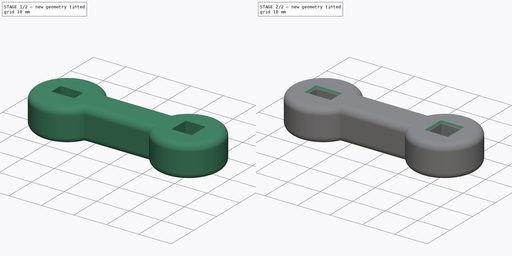
[diagram: build sequence overview — one tinted view per stage of 2, left to right]
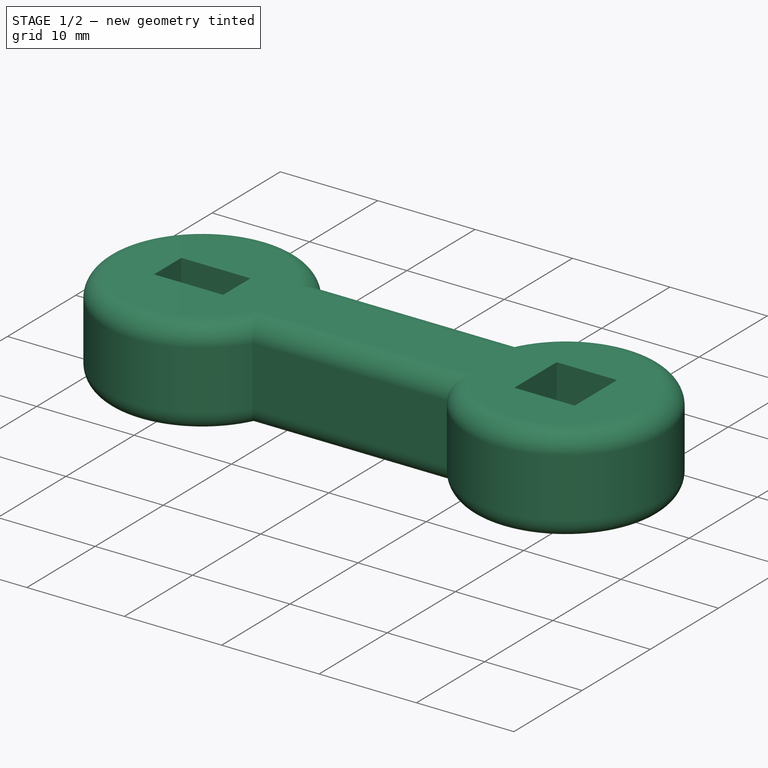
[diagram: stage 1 of 2 — iso view after this stage's code; geometry added in this stage tinted green]
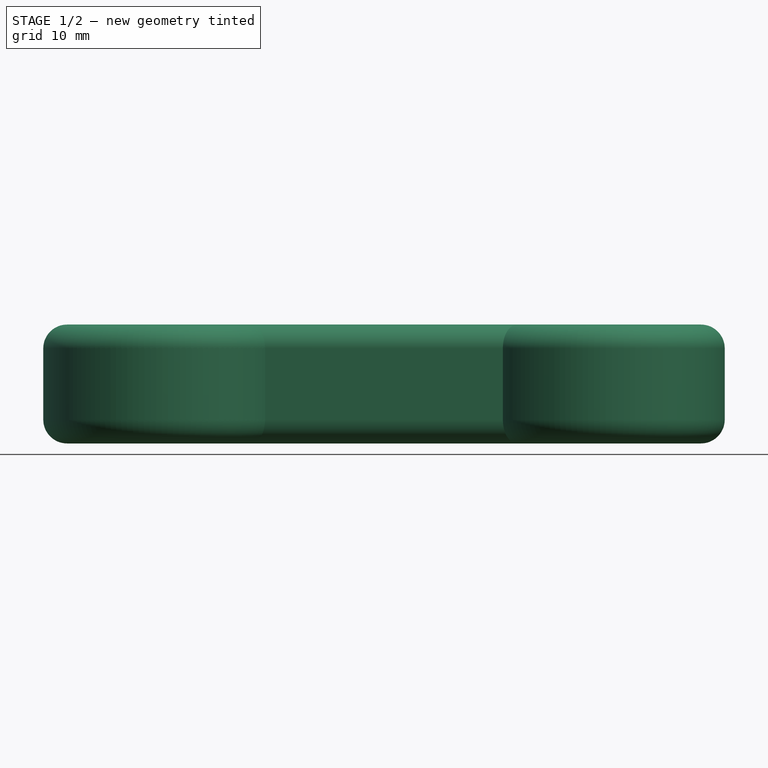
[diagram: stage 1 of 2 — front view after this stage's code; geometry added in this stage tinted green]
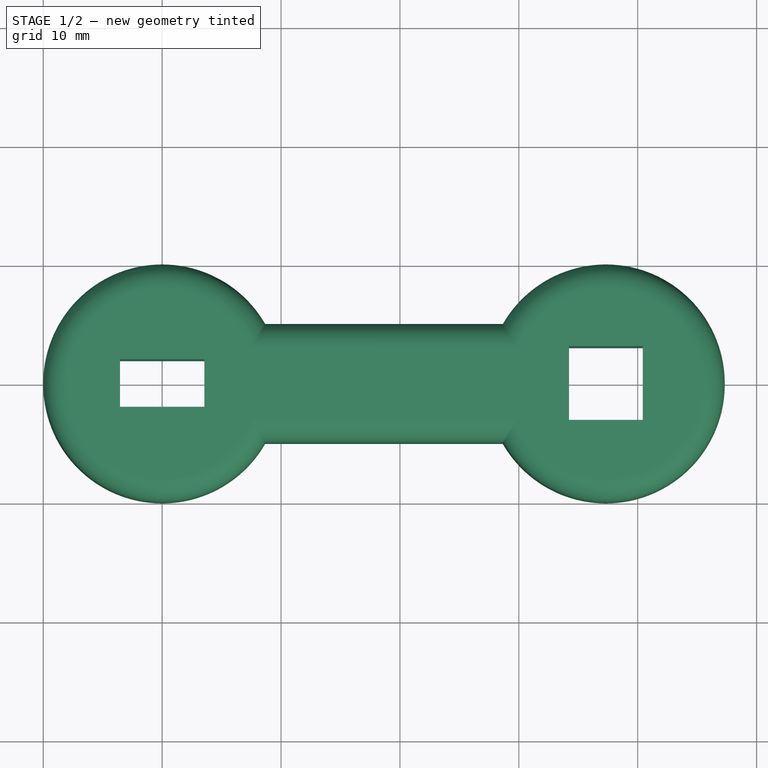
[diagram: stage 1 of 2 — top view after this stage's code; geometry added in this stage tinted green]
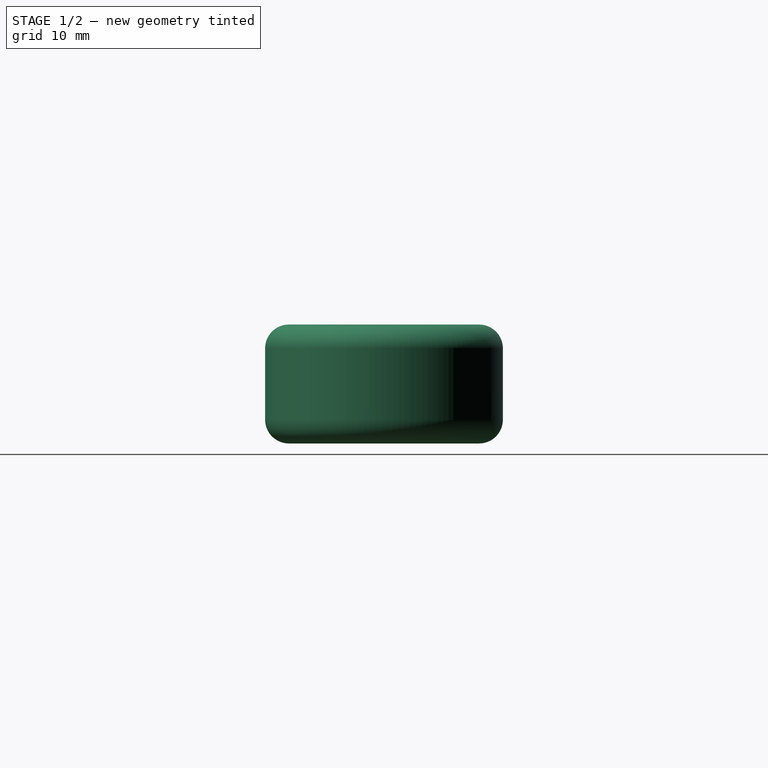
[diagram: stage 1 of 2 — right view after this stage's code; geometry added in this stage tinted green]
FCSTD DOCUMENT  (FreeCAD 1.0R39285 (Git))
Label: LockshieldKey
License: All rights reserved
LicenseURL: https://en.wikipedia.org/wiki/All_rights_reserved
objects: PartDesign::Fillet×2, Sketcher::SketchObject×1, PartDesign::Pad×1, PartDesign::Body×1
note: 12 computed .brp shape members not serialized (recipe doc carries the construction recipe); baked Part::Feature solids carry a one-line shape summary decoded from their .brp

FEATURE [Sketcher::SketchObject] Sketch
  ArcFitTolerance = 1e-06
  AttachmentSupport = -> [XY_Plane]
  FullyConstrained = true
  MakeInternals = false
  MapMode = 5
  sketch-geometry (16):
    g0: LineSegment StartX=-3.55 StartY=2 StartZ=0 EndX=-3.55 EndY=-2 EndZ=0
    g1: LineSegment StartX=-3.55 StartY=-2 StartZ=0 EndX=3.55 EndY=-2 EndZ=0
    g2: LineSegment StartX=3.55 StartY=-2 StartZ=0 EndX=3.55 EndY=2 EndZ=0
    g3: LineSegment StartX=3.55 StartY=2 StartZ=0 EndX=-3.55 EndY=2 EndZ=0
    g4: GeomPoint [constr] X=0 Y=0 Z=0
    g5: ArcOfCircle CenterX=0 CenterY=0 CenterZ=0 NormalX=0 NormalY=0 NormalZ=1 AngleXU=0 Radius=10 StartAngle=0.523599 EndAngle=5.75959
    g6: ArcOfCircle CenterX=37.3205 CenterY=0 CenterZ=0 NormalX=0 NormalY=0 NormalZ=1 AngleXU=0 Radius=10 StartAngle=3.66519 EndAngle=8.90118
    g7: LineSegment [constr] StartX=8.66025 StartY=5 StartZ=0 EndX=8.66025 EndY=-5 EndZ=0
    g8: LineSegment [constr] StartX=28.6603 StartY=5 StartZ=0 EndX=28.6603 EndY=-5 EndZ=0
    g9: LineSegment StartX=8.66025 StartY=5 StartZ=0 EndX=28.6603 EndY=5 EndZ=0
    g10: LineSegment StartX=8.66025 StartY=-5 StartZ=0 EndX=28.6603 EndY=-5 EndZ=0
    g11: LineSegment StartX=34.2205 StartY=3.1 StartZ=0 EndX=34.2205 EndY=-3.1 EndZ=0
    g12: LineSegment StartX=34.2205 StartY=-3.1 StartZ=0 EndX=40.4205 EndY=-3.1 EndZ=0
    g13: LineSegment StartX=40.4205 StartY=-3.1 StartZ=0 EndX=40.4205 EndY=3.1 EndZ=0
    g14: LineSegment StartX=40.4205 StartY=3.1 StartZ=0 EndX=34.2205 EndY=3.1 EndZ=0
    g15: GeomPoint [constr] X=37.3205 Y=0 Z=0
  constraints (41):
    c: Coincident(g0,g1)
    c: Coincident(g1,g2)
    c: Coincident(g2,g3)
    c: Coincident(g3,g0)
    c: Vertical(g0)
    c: Vertical(g2)
    c: Horizontal(g1)
    c: Horizontal(g3)
    c: Symmetric(g2,g0,g4)
    c: Coincident(g4,g-1)
    c: DistanceX(g3,g3) = 7.1
    c: Distance(g2,g2) = 4
    c: Coincident(g5,g4)
    c: PointOnObject(g6,g-1)
    c: Vertical(g7)
    c: Vertical(g8)
    c: Coincident(g5,g7)
    c: Coincident(g5,g7)
    c: Coincident(g6,g8)
    c: Coincident(g6,g8)
    c: Coincident(g9,g5)
    c: Coincident(g9,g6)
    c: Horizontal(g9)
    c: Coincident(g10,g5)
    c: Coincident(g10,g6)
    c: Radius(g5) = 10
    c: Distance(g10,g9) = 10
    c: DistanceX(g9,g9) = 20
    c: Radius(g6) = 10
    c: Coincident(g11,g12)
    c: Coincident(g12,g13)
    c: Coincident(g13,g14)
    c: Coincident(g14,g11)
    c: Vertical(g11)
    c: Vertical(g13)
    c: Horizontal(g12)
    c: Horizontal(g14)
    c: Symmetric(g13,g11,g15)
    c: Coincident(g15,g6)
    c: DistanceY(g13,g13) = 6.2
    c: DistanceX(g12,g12) = 6.2
FEATURE [PartDesign::Pad] Pad
  Direction = (0,0,1)
  Length = 10
  Length2 = 10
  Profile = -> Sketch
  ReferenceAxis = -> Sketch [N_Axis]
  Refine = true
  Suppressed = false
  Type = 0
FEATURE [PartDesign::Fillet] Fillet
  Base = -> Pad [Edge4,Edge7,Edge12,Edge10,Edge3,Edge6,Edge9,Edge11]
  BaseFeature = -> Pad
  Radius = 2
  Refine = true
  SupportTransform = false
  Suppressed = false
  UseAllEdges = false
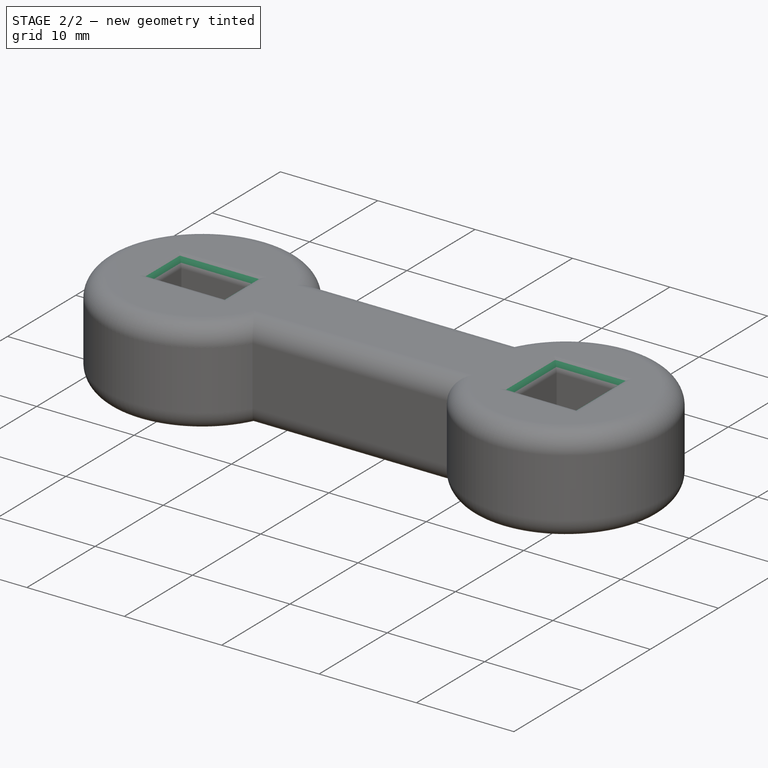
[diagram: stage 2 of 2 — iso view after this stage's code; geometry added in this stage tinted green]
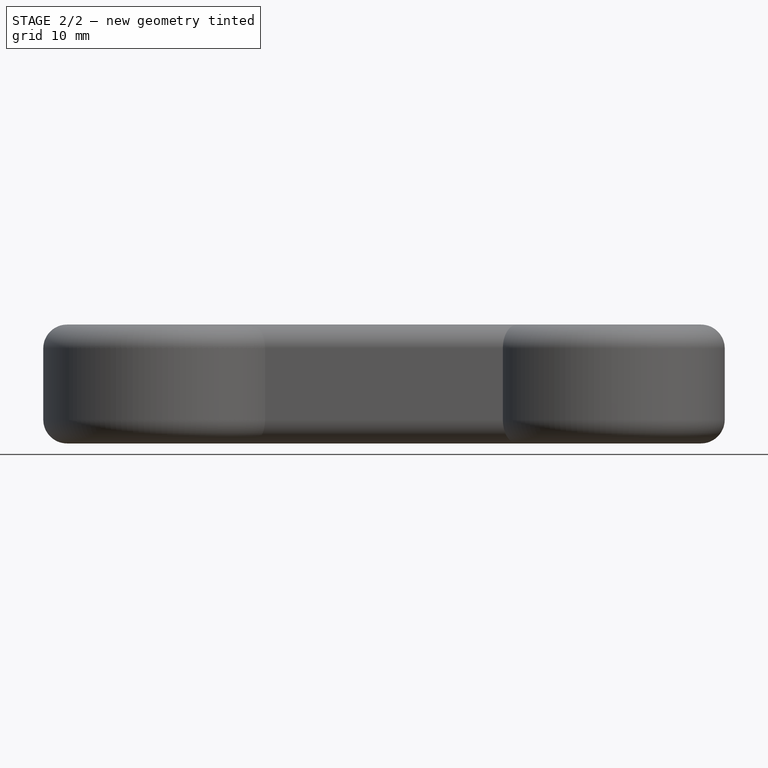
[diagram: stage 2 of 2 — front view after this stage's code; geometry added in this stage tinted green]
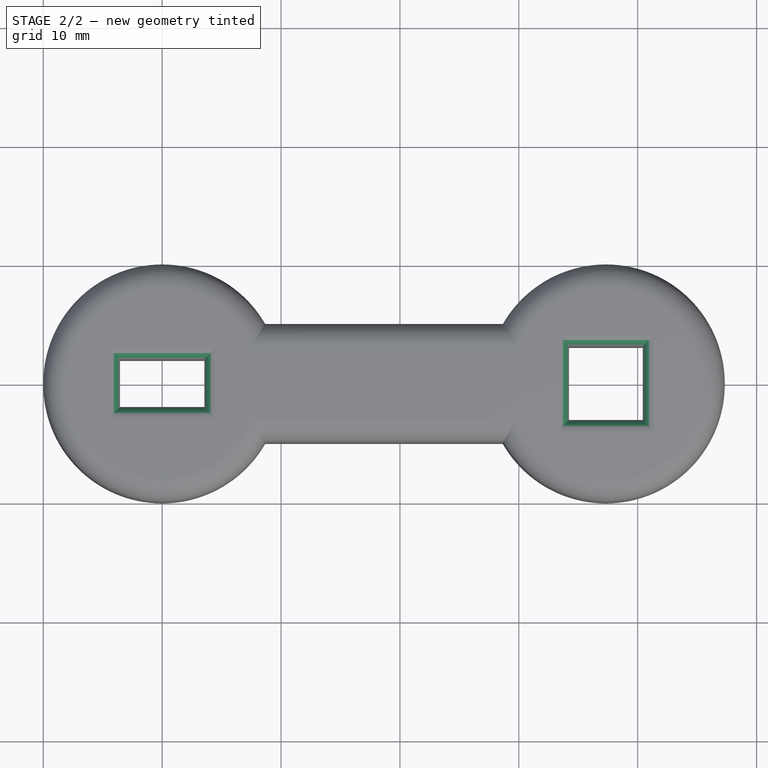
[diagram: stage 2 of 2 — top view after this stage's code; geometry added in this stage tinted green]
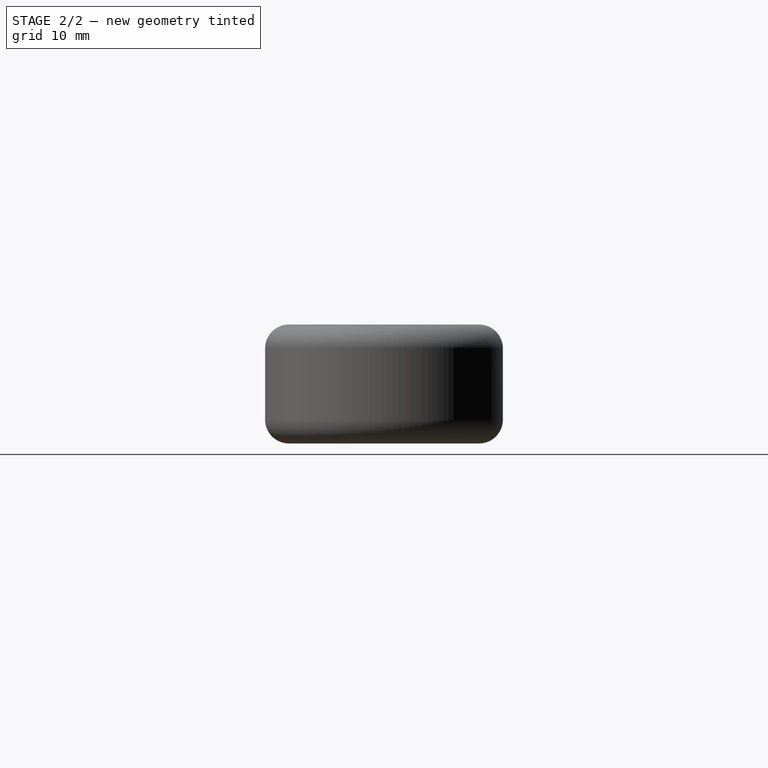
[diagram: stage 2 of 2 — right view after this stage's code; geometry added in this stage tinted green]
FEATURE [PartDesign::Fillet] Fillet001
  Base = -> Fillet [Edge30,Edge29,Edge32,Edge31,Edge43,Edge41,Edge42,Edge40,Edge39,Edge36,Edge37,Edge38,Edge26,Edge27,Edge28,Edge25]
  BaseFeature = -> Fillet
  Radius = 1
  Refine = true
  SupportTransform = false
  Suppressed = false
  UseAllEdges = false
FEATURE [PartDesign::Body] Body
  AllowCompound = false
  Group = -> [Sketch,Pad,Fillet,Fillet001]
  Origin = -> Origin
  Tip = -> Fillet001
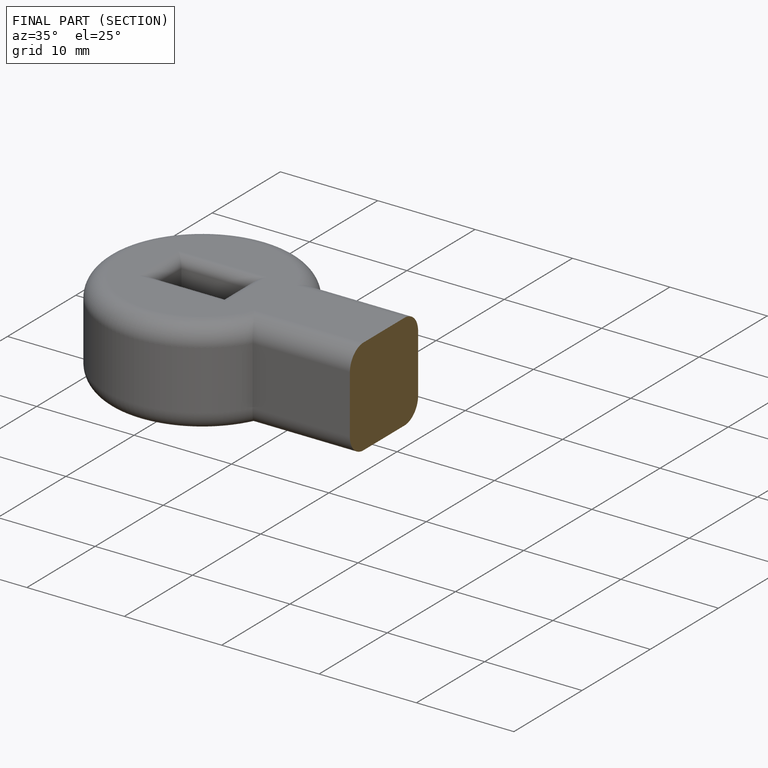
[diagram: finished part — half-section view (interior)]
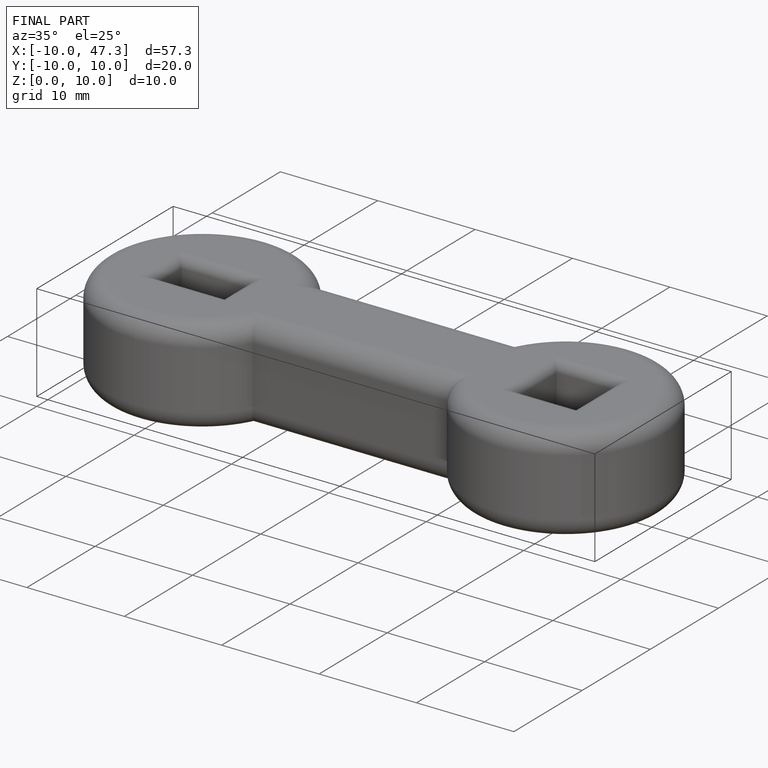
[diagram: finished part — iso view with bounding-box wireframe]
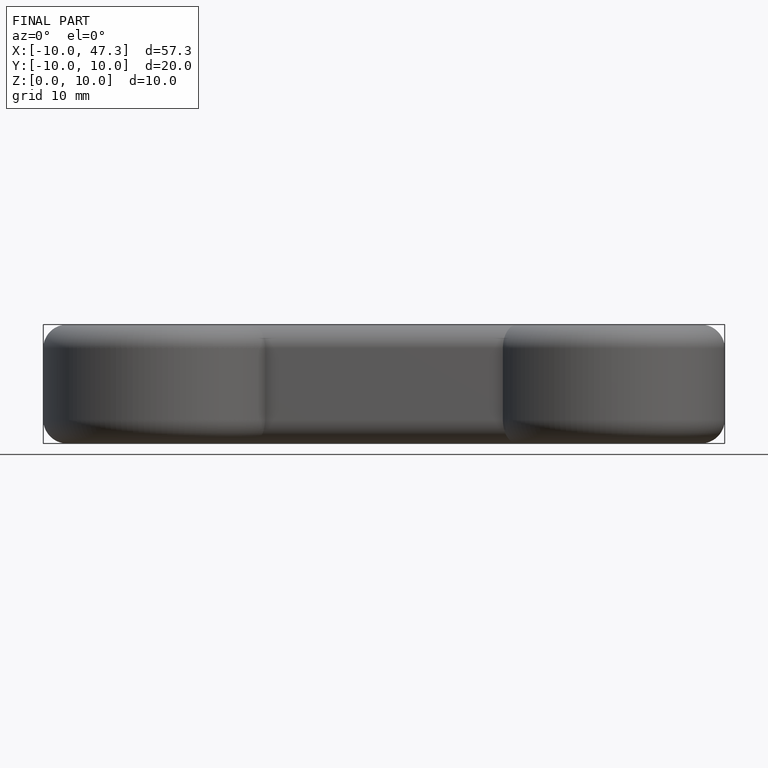
[diagram: finished part — front view with bounding-box wireframe]
